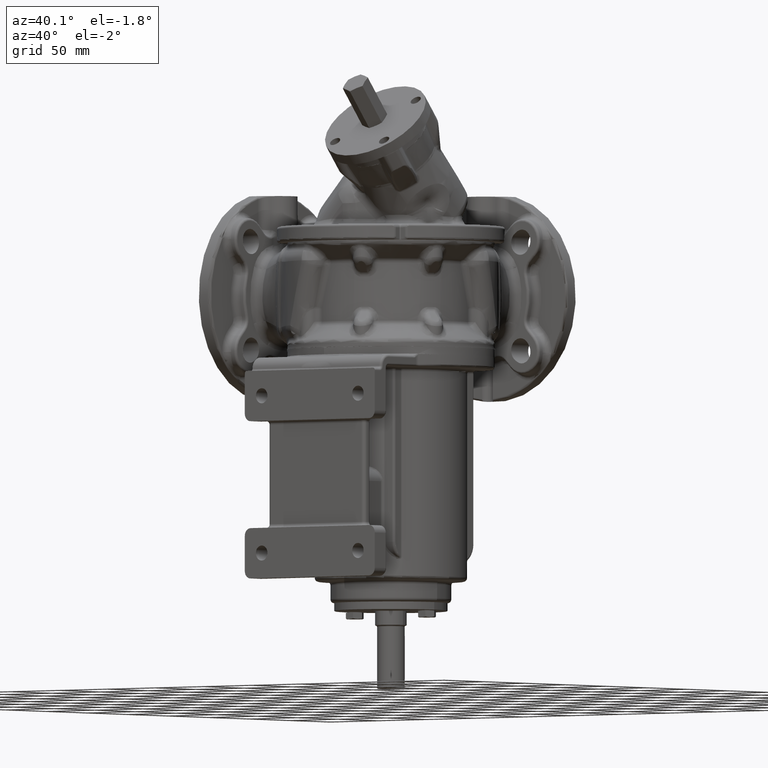
[diagram: clean part render]
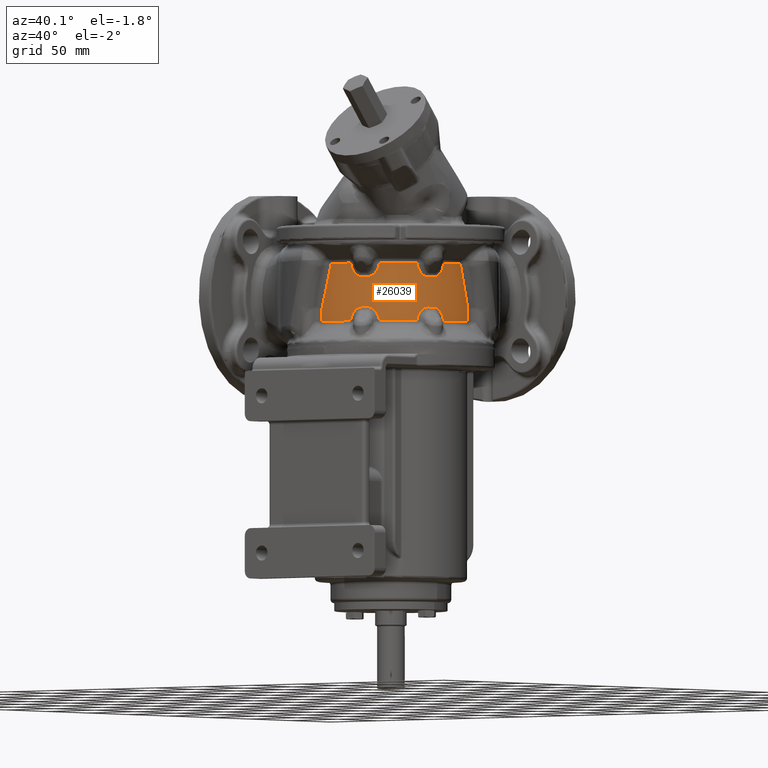
[diagram: same view with one face highlighted and labeled with its STEP entity id]
A machine part, auxiliary view. The second image highlights one B-rep face of the part: STEP entity #26039.
In plain terms, the highlighted cylindrical surface (partial cylindrical patch) has radius 69 mm, axis along (0, 0, -1).
Its self-contained STEP definition (entity closure, byte-faithful):
#92=CARTESIAN_POINT('',(5.818704602229E1,-3.708460159149E1,7.292893218564E1));
#93=CARTESIAN_POINT('',(5.819064961726E1,-3.707894738577E1,7.288133602007E1));
#94=CARTESIAN_POINT('',(5.819814311767E1,-3.706718625498E1,7.278626679811E1));
#95=CARTESIAN_POINT('',(5.821023042504E1,-3.704820172804E1,7.264410631498E1));
#96=CARTESIAN_POINT('',(5.821886642229E1,-3.703462796630E1,7.254947833878E1));
#97=CARTESIAN_POINT('',(5.822332731378E1,-3.702761343254E1,7.250221323931E1));
#99=CARTESIAN_POINT('',(5.822332731378E1,-3.702761343254E1,7.250221323931E1));
#100=CARTESIAN_POINT('',(5.832615971832E1,-3.686592302498E1,7.141300375906E1));
#101=CARTESIAN_POINT('',(5.861438308143E1,-3.640990068898E1,6.941658816249E1));
#102=CARTESIAN_POINT('',(5.921776563204E1,-3.542330587225E1,6.693770738E1));
#103=CARTESIAN_POINT('',(5.992472746570E1,-3.421646718043E1,6.497989969140E1));
#104=CARTESIAN_POINT('',(6.067687584642E1,-3.286559097045E1,6.353227906343E1));
#105=CARTESIAN_POINT('',(6.141609930399E1,-3.146277619277E1,6.257435465403E1));
#106=CARTESIAN_POINT('',(6.212045043805E1,-3.004759726719E1,6.203828216895E1));
#107=CARTESIAN_POINT('',(6.255312078170E1,-2.912660573456E1,6.192893538800E1));
#108=CARTESIAN_POINT('',(6.276190438198E1,-2.866955455932E1,6.192893218229E1));
#110=CARTESIAN_POINT('',(0.E0,0.E0,6.192893218813E1));
#111=DIRECTION('',(0.E0,0.E0,1.E0));
#112=DIRECTION('',(9.095928171198E-1,-4.155007906659E-1,0.E0));
#113=AXIS2_PLACEMENT_3D('',#110,#111,#112);
#115=CARTESIAN_POINT('',(6.465180463104E1,-2.410693174638E1,6.192893217961E1));
#116=CARTESIAN_POINT('',(6.482747097704E1,-2.363581124078E1,6.192893725479E1));
#117=CARTESIAN_POINT('',(6.517288424382E1,-2.267826511914E1,6.203840011542E1));
#118=CARTESIAN_POINT('',(6.567543793199E1,-2.117970588049E1,6.257463154431E1));
#119=CARTESIAN_POINT('',(6.614432758332E1,-1.966610964604E1,6.353204402866E1));
#120=CARTESIAN_POINT('',(6.656689904128E1,-1.818198616544E1,6.497636437794E1));
#121=CARTESIAN_POINT('',(6.692004166736E1,-1.683039990072E1,6.692897290421E1));
#122=CARTESIAN_POINT('',(6.719151723050E1,-1.570443825226E1,6.940609540024E1));
#123=CARTESIAN_POINT('',(6.731078392937E1,-1.517548626976E1,7.140823197909E1));
#124=CARTESIAN_POINT('',(6.735257199289E1,-1.498769648555E1,7.250184359308E1));
#126=CARTESIAN_POINT('',(6.735257199289E1,-1.498769648555E1,7.250184359308E1));
#127=CARTESIAN_POINT('',(6.735437722365E1,-1.497958403546E1,7.254908813073E1));
#128=CARTESIAN_POINT('',(6.735786951240E1,-1.496387637707E1,7.264371707283E1));
#129=CARTESIAN_POINT('',(6.736275497255E1,-1.494186735238E1,7.278609757790E1));
#130=CARTESIAN_POINT('',(6.736577607482E1,-1.492823696555E1,7.288127574873E1));
#131=CARTESIAN_POINT('',(6.736722788299E1,-1.492168245744E1,7.292893218564E1));
#133=CARTESIAN_POINT('',(0.E0,0.E0,7.292893218813E1));
#134=DIRECTION('',(0.E0,0.E0,1.E0));
#135=DIRECTION('',(9.763366359870E-1,-2.162562674922E-1,0.E0));
#136=AXIS2_PLACEMENT_3D('',#133,#134,#135);
#138=CARTESIAN_POINT('',(6.887590909286E1,4.136320324837E0,7.292893245047E1));
#139=CARTESIAN_POINT('',(6.887351960966E1,4.176124695312E0,7.261121084648E1));
#140=CARTESIAN_POINT('',(6.886779602225E1,4.270297979282E0,7.197882451311E1));
#141=CARTESIAN_POINT('',(6.885609982085E1,4.455524873881E0,7.103759027842E1));
#142=CARTESIAN_POINT('',(6.884604418802E1,4.607517300131E0,7.041862003047E1));
#143=CARTESIAN_POINT('',(6.884037823127E1,4.690663596699E0,7.011095271538E1));
#145=CARTESIAN_POINT('',(6.884037823127E1,4.690663596699E0,7.011095271538E1));
#146=CARTESIAN_POINT('',(6.883746444705E1,4.733431539417E0,6.995268681467E1));
#147=CARTESIAN_POINT('',(6.883146124421E1,4.820355214864E0,6.963632412250E1));
#148=CARTESIAN_POINT('',(6.882188508687E1,4.955238554706E0,6.916098870063E1));
#149=CARTESIAN_POINT('',(6.881515462270E1,5.047446108383E0,6.884615765231E1));
#150=CARTESIAN_POINT('',(6.881169495639E1,5.094176796009E0,6.868904036449E1));
#152=CARTESIAN_POINT('',(6.881169495639E1,5.094176796009E0,6.868904036449E1));
#153=CARTESIAN_POINT('',(6.872987542411E1,6.199387786273E0,6.497313648031E1));
#154=CARTESIAN_POINT('',(6.851389989549E1,8.393113569639E0,5.769423385898E1));
#155=CARTESIAN_POINT('',(6.803927456116E1,1.162696302797E1,4.724499447541E1));
#156=CARTESIAN_POINT('',(6.762494594357E1,1.374864858690E1,4.057339520675E1));
#157=CARTESIAN_POINT('',(6.739407648226E1,1.479994818723E1,3.731300089390E1));
#159=DIRECTION('',(-2.940730959600E-10,-3.574380055472E-8,-1.E0));
#160=VECTOR('',#159,1.024193308204E1);
#161=CARTESIAN_POINT('',(6.739407648226E1,1.479994818723E1,3.731300089390E1));
#162=LINE('',#161,#160);
#163=CARTESIAN_POINT('',(0.E0,0.E0,2.707106781187E1));
#164=DIRECTION('',(0.E0,0.E0,1.E0));
#165=DIRECTION('',(9.763366389102E-1,-2.162562542948E-1,0.E0));
#166=AXIS2_PLACEMENT_3D('',#163,#164,#165);
#168=CARTESIAN_POINT('',(6.736722808470E1,-1.492168154681E1,2.707106781422E1));
#169=CARTESIAN_POINT('',(6.736577808054E1,-1.492822781673E1,2.711866410082E1));
#170=CARTESIAN_POINT('',(6.736276040436E1,-1.494184292143E1,2.721373352368E1));
#171=CARTESIAN_POINT('',(6.735788332963E1,-1.496381404610E1,2.735589404170E1));
#172=CARTESIAN_POINT('',(6.735439179688E1,-1.497951874067E1,2.745052214261E1));
#173=CARTESIAN_POINT('',(6.735258609531E1,-1.498763311103E1,2.749778730536E1));
#175=CARTESIAN_POINT('',(6.735258609531E1,-1.498763311103E1,2.749778730536E1));
#176=CARTESIAN_POINT('',(6.731096727123E1,-1.517467867903E1,2.858699479939E1));
#177=CARTESIAN_POINT('',(6.719231572991E1,-1.570093874108E1,3.058340716805E1));
#178=CARTESIAN_POINT('',(6.692134443185E1,-1.682521983707E1,3.306228512845E1));
#179=CARTESIAN_POINT('',(6.656787888620E1,-1.817847863772E1,3.502009216922E1));
#180=CARTESIAN_POINT('',(6.614451544648E1,-1.966553854399E1,3.646771318275E1));
#181=CARTESIAN_POINT('',(6.567528583404E1,-2.118018820600E1,3.742564079003E1));
#182=CARTESIAN_POINT('',(6.517265361049E1,-2.267892613417E1,3.796171702269E1));
#183=CARTESIAN_POINT('',(6.482735714054E1,-2.363611326268E1,3.807106459115E1));
#184=CARTESIAN_POINT('',(6.465180462970E1,-2.410693174596E1,3.807106781359E1));
#186=CARTESIAN_POINT('',(0.E0,0.E0,3.807106781187E1));
#187=DIRECTION('',(0.E0,0.E0,-1.E0));
#188=DIRECTION('',(9.369826757733E-1,-3.493758224331E-1,0.E0));
#189=AXIS2_PLACEMENT_3D('',#186,#187,#188);
#191=CARTESIAN_POINT('',(6.276190438020E1,-2.866955455882E1,3.807106781287E1));
#192=CARTESIAN_POINT('',(6.255299687486E1,-2.912687970588E1,3.807106276094E1));
#193=CARTESIAN_POINT('',(6.212017148990E1,-3.004817460812E1,3.796161019001E1));
#194=CARTESIAN_POINT('',(6.141590624734E1,-3.146314539211E1,3.742541239313E1));
#195=CARTESIAN_POINT('',(6.067719590729E1,-3.286496393579E1,3.646804002265E1));
#196=CARTESIAN_POINT('',(5.992654802695E1,-3.421323647964E1,3.502372161470E1));
#197=CARTESIAN_POINT('',(5.922052863832E1,-3.541868641148E1,3.307110941429E1));
#198=CARTESIAN_POINT('',(5.861630103141E1,-3.640684880933E1,3.059395818929E1));
#199=CARTESIAN_POINT('',(5.832660263211E1,-3.686521997359E1,2.859178638644E1));
#200=CARTESIAN_POINT('',(5.822336185590E1,-3.702755911746E1,2.749815269999E1));
#202=CARTESIAN_POINT('',(5.822336185590E1,-3.702755911746E1,2.749815269999E1));
#203=CARTESIAN_POINT('',(5.821890202522E1,-3.703457190299E1,2.745090860620E1));
#204=CARTESIAN_POINT('',(5.821026454311E1,-3.704814817634E1,2.735628053053E1));
#205=CARTESIAN_POINT('',(5.819815647268E1,-3.706716526315E1,2.721390126268E1));
#206=CARTESIAN_POINT('',(5.819065464481E1,-3.707893953541E1,2.711872387192E1));
#207=CARTESIAN_POINT('',(5.818704652340E1,-3.708460080524E1,2.707106781422E1));
#209=CARTESIAN_POINT('',(0.E0,0.E0,2.707106781187E1));
#210=DIRECTION('',(0.E0,0.E0,1.E0));
#211=DIRECTION('',(5.374579942084E-1,-8.432905219801E-1,0.E0));
#212=AXIS2_PLACEMENT_3D('',#209,#210,#211);
#214=CARTESIAN_POINT('',(3.708460159998E1,-5.818704601688E1,2.707106781422E1));
#215=CARTESIAN_POINT('',(3.707894738036E1,-5.819064962095E1,2.711866410069E1));
#216=CARTESIAN_POINT('',(3.706718622825E1,-5.819814313450E1,2.721373352325E1));
#217=CARTESIAN_POINT('',(3.704820168451E1,-5.821023045306E1,2.735589404045E1));
#218=CARTESIAN_POINT('',(3.703462790207E1,-5.821886646256E1,2.745052214099E1));
#219=CARTESIAN_POINT('',(3.702761335197E1,-5.822332736502E1,2.749778730355E1));
#221=CARTESIAN_POINT('',(3.702761335197E1,-5.822332736502E1,2.749778730355E1));
#222=CARTESIAN_POINT('',(3.686592293844E1,-5.832615977428E1,2.858699663515E1));
#223=CARTESIAN_POINT('',(3.640990062669E1,-5.861438311953E1,3.058341200891E1));
#224=CARTESIAN_POINT('',(3.542330578518E1,-5.921776568440E1,3.306229280808E1));
#225=CARTESIAN_POINT('',(3.421646710240E1,-5.992472751002E1,3.502010040009E1));
#226=CARTESIAN_POINT('',(3.286559091137E1,-6.067687587822E1,3.646772099280E1));
#227=CARTESIAN_POINT('',(3.146277615034E1,-6.141609932569E1,3.742564537306E1));
#228=CARTESIAN_POINT('',(3.004759723859E1,-6.212045045134E1,3.796171784574E1));
#229=CARTESIAN_POINT('',(2.912660572456E1,-6.255312078703E1,3.807106461450E1));
#230=CARTESIAN_POINT('',(2.866955455976E1,-6.276190438264E1,3.807106781994E1));
#232=CARTESIAN_POINT('',(0.E0,0.E0,3.807106781187E1));
#233=DIRECTION('',(0.E0,0.E0,-1.E0));
#234=DIRECTION('',(4.155007906671E-1,-9.095928171193E-1,0.E0));
#235=AXIS2_PLACEMENT_3D('',#232,#233,#234);
#237=CARTESIAN_POINT('',(2.410693174601E1,-6.465180462932E1,3.807106781299E1));
#238=CARTESIAN_POINT('',(2.363790174167E1,-6.482669026948E1,3.807106386691E1));
#239=CARTESIAN_POINT('',(2.268411672022E1,-6.517081069887E1,3.796255989674E1));
#240=CARTESIAN_POINT('',(2.118951684421E1,-6.567223792345E1,3.742973495778E1));
#241=CARTESIAN_POINT('',(1.967926578635E1,-6.614041143918E1,3.647816569427E1));
#242=CARTESIAN_POINT('',(1.819237005914E1,-6.656409766220E1,3.503642236770E1));
#243=CARTESIAN_POINT('',(1.683609479744E1,-6.691864159894E1,3.308193053022E1));
#244=CARTESIAN_POINT('',(1.570574583583E1,-6.719122669387E1,3.059880110489E1));
#245=CARTESIAN_POINT('',(1.517578335387E1,-6.731071894062E1,2.859344578114E1));
#246=CARTESIAN_POINT('',(1.498769584918E1,-6.735257213450E1,2.749815270077E1));
#248=CARTESIAN_POINT('',(1.498769584918E1,-6.735257213450E1,2.749815270077E1));
#249=CARTESIAN_POINT('',(1.497958348446E1,-6.735437734619E1,2.745090860699E1));
#250=CARTESIAN_POINT('',(1.496387598714E1,-6.735786959900E1,2.735628053018E1));
#251=CARTESIAN_POINT('',(1.494186717748E1,-6.736275501132E1,2.721390126279E1));
#252=CARTESIAN_POINT('',(1.492823691634E1,-6.736577608572E1,2.711872387193E1));
#253=CARTESIAN_POINT('',(1.492168246693E1,-6.736722788089E1,2.707106781422E1));
#255=CARTESIAN_POINT('',(0.E0,0.E0,2.707106781187E1));
#256=DIRECTION('',(0.E0,0.E0,-1.E0));
#257=DIRECTION('',(2.162562676299E-1,-9.763366359565E-1,0.E0));
#258=AXIS2_PLACEMENT_3D('',#255,#256,#257);
#260=DIRECTION('',(1.296172537384E-7,-3.065640750825E-7,9.999999999999E-1));
#261=VECTOR('',#260,1.024192426725E1);
#262=CARTESIAN_POINT('',(-1.479994782115E1,-6.739407647925E1,2.707106781187E1));
#263=LINE('',#262,#261);
#264=CARTESIAN_POINT('',(-5.094176796010E0,-6.881169495639E1,6.868904036449E1));
#265=CARTESIAN_POINT('',(-6.198671226248E0,-6.872992842179E1,6.497554553296E1));
#266=CARTESIAN_POINT('',(-8.391402824501E0,-6.851410004408E1,5.769983238037E1));
#267=CARTESIAN_POINT('',(-1.162544800929E1,-6.803954441444E1,4.724977674005E1));
#268=CARTESIAN_POINT('',(-1.374798341048E1,-6.762509511038E1,4.057544248630E1));
#269=CARTESIAN_POINT('',(-1.479994649362E1,-6.739407961906E1,3.731299207911E1));
#271=CARTESIAN_POINT('',(-4.690663596699E0,-6.884037823127E1,7.011095271538E1));
#272=CARTESIAN_POINT('',(-4.733431540018E0,-6.883746444701E1,6.995268681247E1));
#273=CARTESIAN_POINT('',(-4.820355216214E0,-6.883146124412E1,6.963632411746E1));
#274=CARTESIAN_POINT('',(-4.955238553719E0,-6.882188508694E1,6.916098870422E1));
#275=CARTESIAN_POINT('',(-5.047446107914E0,-6.881515462273E1,6.884615765389E1));
#276=CARTESIAN_POINT('',(-5.094176796010E0,-6.881169495639E1,6.868904036449E1));
#278=CARTESIAN_POINT('',(-4.136320328782E0,-6.887590909262E1,7.292893233470E1));
#279=CARTESIAN_POINT('',(-4.176124718313E0,-6.887351960918E1,7.261121059388E1));
#280=CARTESIAN_POINT('',(-4.270298033391E0,-6.886779601872E1,7.197882424209E1));
#281=CARTESIAN_POINT('',(-4.455525083141E0,-6.885609980703E1,7.103758930988E1));
#282=CARTESIAN_POINT('',(-4.607517410658E0,-6.884604418148E1,7.041861962433E1));
#283=CARTESIAN_POINT('',(-4.690663596699E0,-6.884037823127E1,7.011095271538E1));
#285=CARTESIAN_POINT('',(0.E0,0.E0,7.292893218813E1));
#286=DIRECTION('',(0.E0,0.E0,-1.E0));
#287=DIRECTION('',(2.162562544369E-1,-9.763366388787E-1,0.E0));
#288=AXIS2_PLACEMENT_3D('',#285,#286,#287);
#290=CARTESIAN_POINT('',(1.492168155663E1,-6.736722808252E1,7.292893218564E1));
#291=CARTESIAN_POINT('',(1.492822781028E1,-6.736577808175E1,7.288133602007E1));
#292=CARTESIAN_POINT('',(1.494184289057E1,-6.736276041137E1,7.278626679808E1));
#293=CARTESIAN_POINT('',(1.496381399530E1,-6.735788334064E1,7.264410631509E1));
#294=CARTESIAN_POINT('',(1.497951866653E1,-6.735439181388E1,7.254947833859E1));
#295=CARTESIAN_POINT('',(1.498763301755E1,-6.735258611611E1,7.250221323911E1));
#297=CARTESIAN_POINT('',(1.498763301755E1,-6.735258611611E1,7.250221323911E1));
#298=CARTESIAN_POINT('',(1.517561245523E1,-6.731075646200E1,7.140740157010E1));
#299=CARTESIAN_POINT('',(1.570523679391E1,-6.719134126748E1,6.940299277592E1));
#300=CARTESIAN_POINT('',(1.683423616025E1,-6.691909856880E1,6.692168210740E1));
#301=CARTESIAN_POINT('',(1.818885752698E1,-6.656504432300E1,6.496789628984E1));
#302=CARTESIAN_POINT('',(1.967450612115E1,-6.614182379722E1,6.352560023944E1));
#303=CARTESIAN_POINT('',(2.118541147031E1,-6.567357464761E1,6.257210060428E1));
#304=CARTESIAN_POINT('',(2.268183864987E1,-6.517161963295E1,6.203776121493E1));
#305=CARTESIAN_POINT('',(2.363707627755E1,-6.482700024114E1,6.192894450742E1));
#306=CARTESIAN_POINT('',(2.410693174831E1,-6.465180463039E1,6.192893218231E1));
#308=CARTESIAN_POINT('',(0.E0,0.E0,6.192893218813E1));
#309=DIRECTION('',(0.E0,0.E0,1.E0));
#310=DIRECTION('',(3.493758224357E-1,-9.369826757723E-1,0.E0));
#311=AXIS2_PLACEMENT_3D('',#308,#309,#310);
#313=CARTESIAN_POINT('',(2.866955455972E1,-6.276190438204E1,6.192893217846E1));
#314=CARTESIAN_POINT('',(2.912687971118E1,-6.255299687446E1,6.192893722918E1));
#315=CARTESIAN_POINT('',(3.004817459785E1,-6.212017149368E1,6.203838978226E1));
#316=CARTESIAN_POINT('',(3.146314533400E1,-6.141590627636E1,6.257458755785E1));
#317=CARTESIAN_POINT('',(3.286496367974E1,-6.067719604291E1,6.353195974797E1));
#318=CARTESIAN_POINT('',(3.421323588974E1,-5.992654836098E1,6.497627765658E1));
#319=CARTESIAN_POINT('',(3.541868564708E1,-5.922052909475E1,6.692888913296E1));
#320=CARTESIAN_POINT('',(3.640684803581E1,-5.861630151231E1,6.940603936487E1));
#321=CARTESIAN_POINT('',(3.686521930601E1,-5.832660305444E1,7.140821035558E1));
#322=CARTESIAN_POINT('',(3.702755856723E1,-5.822336220582E1,7.250184359308E1));
#324=CARTESIAN_POINT('',(3.702755856723E1,-5.822336220582E1,7.250184359308E1));
#325=CARTESIAN_POINT('',(3.703457142661E1,-5.821890232827E1,7.254908813073E1));
#326=CARTESIAN_POINT('',(3.704814783944E1,-5.821026475756E1,7.264371707288E1));
#327=CARTESIAN_POINT('',(3.706716511203E1,-5.819815656896E1,7.278609757790E1));
#328=CARTESIAN_POINT('',(3.707893949291E1,-5.819065467190E1,7.288127574873E1));
#329=CARTESIAN_POINT('',(3.708460081344E1,-5.818704651817E1,7.292893218564E1));
#331=CARTESIAN_POINT('',(0.E0,0.E0,7.292893218813E1));
#332=DIRECTION('',(0.E0,0.E0,-1.E0));
#333=DIRECTION('',(8.432905220583E-1,-5.374579940856E-1,0.E0));
#334=AXIS2_PLACEMENT_3D('',#331,#332,#333);
#24433=VERTEX_POINT('',#92);
#24434=VERTEX_POINT('',#97);
#24436=VERTEX_POINT('',#108);
#24438=CARTESIAN_POINT('',(6.465180462833E1,-2.410693174795E1,
6.192893218813E1));
#24439=VERTEX_POINT('',#24438);
#24442=VERTEX_POINT('',#124);
#24444=VERTEX_POINT('',#131);
#24459=CARTESIAN_POINT('',(5.818704652314E1,-3.708460080564E1,
2.707106781187E1));
#24461=VERTEX_POINT('',#24459);
#24463=VERTEX_POINT('',#168);
#24464=VERTEX_POINT('',#173);
#24466=VERTEX_POINT('',#184);
#24468=CARTESIAN_POINT('',(6.276190438121E1,-2.866955455607E1,
3.807106781187E1));
#24469=VERTEX_POINT('',#24468);
#24472=VERTEX_POINT('',#200);
#24479=VERTEX_POINT('',#214);
#24480=VERTEX_POINT('',#219);
#24482=VERTEX_POINT('',#230);
#24484=CARTESIAN_POINT('',(2.410693174793E1,-6.465180462834E1,
3.807106781187E1));
#24485=VERTEX_POINT('',#24484);
#24488=VERTEX_POINT('',#246);
#24490=VERTEX_POINT('',#253);
#24507=VERTEX_POINT('',#290);
#24508=VERTEX_POINT('',#295);
#24510=VERTEX_POINT('',#306);
#24512=CARTESIAN_POINT('',(2.866955455610E1,-6.276190438120E1,
6.192893218813E1));
#24513=VERTEX_POINT('',#24512);
#24516=VERTEX_POINT('',#322);
#24518=VERTEX_POINT('',#329);
#24529=CARTESIAN_POINT('',(-4.136320522036E0,-6.887590908684E1,
7.292893218813E1));
#24530=VERTEX_POINT('',#24529);
#24533=CARTESIAN_POINT('',(6.739407647925E1,1.479994782115E1,2.707106781187E1));
#24534=VERTEX_POINT('',#24533);
#24565=VERTEX_POINT('',#152);
#24566=VERTEX_POINT('',#157);
#24569=VERTEX_POINT('',#145);
#24571=VERTEX_POINT('',#138);
#24577=VERTEX_POINT('',#264);
#24578=VERTEX_POINT('',#269);
#24580=VERTEX_POINT('',#271);
#24640=CARTESIAN_POINT('',(-1.479994782115E1,-6.739407647925E1,
2.707106781187E1));
#24641=VERTEX_POINT('',#24640);
#25966=CARTESIAN_POINT('',(0.E0,0.E0,1.006E2));
#25967=DIRECTION('',(0.E0,0.E0,-1.E0));
#25968=DIRECTION('',(1.E0,0.E0,0.E0));
#25969=AXIS2_PLACEMENT_3D('',#25966,#25967,#25968);
#25970=CYLINDRICAL_SURFACE('',#25969,6.9E1);
#25972=ORIENTED_EDGE('',*,*,#25971,.T.);
#25974=ORIENTED_EDGE('',*,*,#25973,.T.);
#25976=ORIENTED_EDGE('',*,*,#25975,.T.);
#25978=ORIENTED_EDGE('',*,*,#25977,.T.);
#25980=ORIENTED_EDGE('',*,*,#25979,.T.);
#25982=ORIENTED_EDGE('',*,*,#25981,.T.);
#25984=ORIENTED_EDGE('',*,*,#25983,.T.);
#25986=ORIENTED_EDGE('',*,*,#25985,.T.);
#25988=ORIENTED_EDGE('',*,*,#25987,.T.);
#25990=ORIENTED_EDGE('',*,*,#25989,.T.);
#25992=ORIENTED_EDGE('',*,*,#25991,.F.);
#25994=ORIENTED_EDGE('',*,*,#25993,.T.);
#25996=ORIENTED_EDGE('',*,*,#25995,.T.);
#25998=ORIENTED_EDGE('',*,*,#25997,.T.);
#26000=ORIENTED_EDGE('',*,*,#25999,.T.);
#26002=ORIENTED_EDGE('',*,*,#26001,.T.);
#26004=ORIENTED_EDGE('',*,*,#26003,.F.);
#26006=ORIENTED_EDGE('',*,*,#26005,.T.);
#26008=ORIENTED_EDGE('',*,*,#26007,.T.);
#26010=ORIENTED_EDGE('',*,*,#26009,.T.);
#26012=ORIENTED_EDGE('',*,*,#26011,.T.);
#26014=ORIENTED_EDGE('',*,*,#26013,.T.);
#26016=ORIENTED_EDGE('',*,*,#26015,.T.);
#26017=ORIENTED_EDGE('',*,*,#25957,.T.);
#26018=ORIENTED_EDGE('',*,*,#25808,.F.);
#26020=ORIENTED_EDGE('',*,*,#26019,.F.);
#26022=ORIENTED_EDGE('',*,*,#26021,.F.);
#26024=ORIENTED_EDGE('',*,*,#26023,.F.);
#26026=ORIENTED_EDGE('',*,*,#26025,.T.);
#26028=ORIENTED_EDGE('',*,*,#26027,.T.);
#26030=ORIENTED_EDGE('',*,*,#26029,.T.);
#26032=ORIENTED_EDGE('',*,*,#26031,.T.);
#26034=ORIENTED_EDGE('',*,*,#26033,.T.);
#26036=ORIENTED_EDGE('',*,*,#26035,.F.);
#26037=EDGE_LOOP('',(#25972,#25974,#25976,#25978,#25980,#25982,#25984,#25986,
#25988,#25990,#25992,#25994,#25996,#25998,#26000,#26002,#26004,#26006,#26008,
#26010,#26012,#26014,#26016,#26017,#26018,#26020,#26022,#26024,#26026,#26028,
#26030,#26032,#26034,#26036));
#26038=FACE_OUTER_BOUND('',#26037,.F.);
#26039=ADVANCED_FACE('',(#26038),#25970,.T.);
#98=B_SPLINE_CURVE_WITH_KNOTS('',3,(#92,#93,#94,#95,#96,#97),.UNSPECIFIED.,.F.,
.F.,(4,1,1,4),(0.E0,3.333333333333E-1,6.666666666667E-1,1.E0),.UNSPECIFIED.);
#109=B_SPLINE_CURVE_WITH_KNOTS('',3,(#99,#100,#101,#102,#103,#104,#105,#106,
#107,#108),.UNSPECIFIED.,.F.,.F.,(4,1,1,1,1,1,1,4),(0.E0,1.428571428571E-1,
2.857142857143E-1,4.285714285714E-1,5.714285714286E-1,7.142857142857E-1,
8.571428571429E-1,1.E0),.UNSPECIFIED.);
#114=CIRCLE('',#113,6.9E1);
#125=B_SPLINE_CURVE_WITH_KNOTS('',3,(#115,#116,#117,#118,#119,#120,#121,#122,
#123,#124),.UNSPECIFIED.,.F.,.F.,(4,1,1,1,1,1,1,4),(0.E0,1.428571428571E-1,
2.857142857143E-1,4.285714285714E-1,5.714285714286E-1,7.142857142857E-1,
8.571428571429E-1,1.E0),.UNSPECIFIED.);
#132=B_SPLINE_CURVE_WITH_KNOTS('',3,(#126,#127,#128,#129,#130,#131),
.UNSPECIFIED.,.F.,.F.,(4,1,1,4),(0.E0,3.333333333333E-1,6.666666666667E-1,1.E0),
.UNSPECIFIED.);
#137=CIRCLE('',#136,6.9E1);
#144=B_SPLINE_CURVE_WITH_KNOTS('',3,(#138,#139,#140,#141,#142,#143),
.UNSPECIFIED.,.F.,.F.,(4,1,1,4),(0.E0,3.333333333333E-1,6.666666666667E-1,1.E0),
.UNSPECIFIED.);
#151=B_SPLINE_CURVE_WITH_KNOTS('',3,(#145,#146,#147,#148,#149,#150),
.UNSPECIFIED.,.F.,.F.,(4,1,1,4),(0.E0,3.333333333333E-1,6.666666666667E-1,1.E0),
.UNSPECIFIED.);
#158=B_SPLINE_CURVE_WITH_KNOTS('',3,(#152,#153,#154,#155,#156,#157),
.UNSPECIFIED.,.F.,.F.,(4,1,1,4),(0.E0,3.333333333333E-1,6.666666666667E-1,1.E0),
.UNSPECIFIED.);
#167=CIRCLE('',#166,6.9E1);
#174=B_SPLINE_CURVE_WITH_KNOTS('',3,(#168,#169,#170,#171,#172,#173),
.UNSPECIFIED.,.F.,.F.,(4,1,1,4),(0.E0,3.333333333333E-1,6.666666666667E-1,1.E0),
.UNSPECIFIED.);
#185=B_SPLINE_CURVE_WITH_KNOTS('',3,(#175,#176,#177,#178,#179,#180,#181,#182,
#183,#184),.UNSPECIFIED.,.F.,.F.,(4,1,1,1,1,1,1,4),(0.E0,1.428571428571E-1,
2.857142857143E-1,4.285714285714E-1,5.714285714286E-1,7.142857142857E-1,
8.571428571429E-1,1.E0),.UNSPECIFIED.);
#190=CIRCLE('',#189,6.9E1);
#201=B_SPLINE_CURVE_WITH_KNOTS('',3,(#191,#192,#193,#194,#195,#196,#197,#198,
#199,#200),.UNSPECIFIED.,.F.,.F.,(4,1,1,1,1,1,1,4),(0.E0,1.428571428571E-1,
2.857142857143E-1,4.285714285714E-1,5.714285714286E-1,7.142857142857E-1,
8.571428571429E-1,1.E0),.UNSPECIFIED.);
#208=B_SPLINE_CURVE_WITH_KNOTS('',3,(#202,#203,#204,#205,#206,#207),
.UNSPECIFIED.,.F.,.F.,(4,1,1,4),(0.E0,3.333333333333E-1,6.666666666667E-1,1.E0),
.UNSPECIFIED.);
#213=CIRCLE('',#212,6.9E1);
#220=B_SPLINE_CURVE_WITH_KNOTS('',3,(#214,#215,#216,#217,#218,#219),
.UNSPECIFIED.,.F.,.F.,(4,1,1,4),(0.E0,3.333333333333E-1,6.666666666667E-1,1.E0),
.UNSPECIFIED.);
#231=B_SPLINE_CURVE_WITH_KNOTS('',3,(#221,#222,#223,#224,#225,#226,#227,#228,
#229,#230),.UNSPECIFIED.,.F.,.F.,(4,1,1,1,1,1,1,4),(0.E0,1.428571428571E-1,
2.857142857143E-1,4.285714285714E-1,5.714285714286E-1,7.142857142857E-1,
8.571428571429E-1,1.E0),.UNSPECIFIED.);
#236=CIRCLE('',#235,6.9E1);
#247=B_SPLINE_CURVE_WITH_KNOTS('',3,(#237,#238,#239,#240,#241,#242,#243,#244,
#245,#246),.UNSPECIFIED.,.F.,.F.,(4,1,1,1,1,1,1,4),(0.E0,1.428571428571E-1,
2.857142857143E-1,4.285714285714E-1,5.714285714286E-1,7.142857142857E-1,
8.571428571429E-1,1.E0),.UNSPECIFIED.);
#254=B_SPLINE_CURVE_WITH_KNOTS('',3,(#248,#249,#250,#251,#252,#253),
.UNSPECIFIED.,.F.,.F.,(4,1,1,4),(0.E0,3.333333333333E-1,6.666666666667E-1,1.E0),
.UNSPECIFIED.);
#259=CIRCLE('',#258,6.9E1);
#270=B_SPLINE_CURVE_WITH_KNOTS('',3,(#264,#265,#266,#267,#268,#269),
.UNSPECIFIED.,.F.,.F.,(4,1,1,4),(0.E0,3.333333333333E-1,6.666666666667E-1,1.E0),
.UNSPECIFIED.);
#277=B_SPLINE_CURVE_WITH_KNOTS('',3,(#271,#272,#273,#274,#275,#276),
.UNSPECIFIED.,.F.,.F.,(4,1,1,4),(0.E0,3.333333333333E-1,6.666666666667E-1,1.E0),
.UNSPECIFIED.);
#284=B_SPLINE_CURVE_WITH_KNOTS('',3,(#278,#279,#280,#281,#282,#283),
.UNSPECIFIED.,.F.,.F.,(4,1,1,4),(0.E0,3.333333333333E-1,6.666666666667E-1,1.E0),
.UNSPECIFIED.);
#289=CIRCLE('',#288,6.9E1);
#296=B_SPLINE_CURVE_WITH_KNOTS('',3,(#290,#291,#292,#293,#294,#295),
.UNSPECIFIED.,.F.,.F.,(4,1,1,4),(0.E0,3.333333333333E-1,6.666666666667E-1,1.E0),
.UNSPECIFIED.);
#307=B_SPLINE_CURVE_WITH_KNOTS('',3,(#297,#298,#299,#300,#301,#302,#303,#304,
#305,#306),.UNSPECIFIED.,.F.,.F.,(4,1,1,1,1,1,1,4),(0.E0,1.428571428571E-1,
2.857142857143E-1,4.285714285714E-1,5.714285714286E-1,7.142857142857E-1,
8.571428571429E-1,1.E0),.UNSPECIFIED.);
#312=CIRCLE('',#311,6.9E1);
#323=B_SPLINE_CURVE_WITH_KNOTS('',3,(#313,#314,#315,#316,#317,#318,#319,#320,
#321,#322),.UNSPECIFIED.,.F.,.F.,(4,1,1,1,1,1,1,4),(0.E0,1.428571428571E-1,
2.857142857143E-1,4.285714285714E-1,5.714285714286E-1,7.142857142857E-1,
8.571428571429E-1,1.E0),.UNSPECIFIED.);
#330=B_SPLINE_CURVE_WITH_KNOTS('',3,(#324,#325,#326,#327,#328,#329),
.UNSPECIFIED.,.F.,.F.,(4,1,1,4),(0.E0,3.333333333333E-1,6.666666666667E-1,1.E0),
.UNSPECIFIED.);
#335=CIRCLE('',#334,6.9E1);
#25808=EDGE_CURVE('',#24577,#24578,#270,.T.);
#25957=EDGE_CURVE('',#24641,#24578,#263,.T.);
#25971=EDGE_CURVE('',#24433,#24434,#98,.T.);
#25973=EDGE_CURVE('',#24434,#24436,#109,.T.);
#25975=EDGE_CURVE('',#24436,#24439,#114,.T.);
#25977=EDGE_CURVE('',#24439,#24442,#125,.T.);
#25979=EDGE_CURVE('',#24442,#24444,#132,.T.);
#25981=EDGE_CURVE('',#24444,#24571,#137,.T.);
#25983=EDGE_CURVE('',#24571,#24569,#144,.T.);
#25985=EDGE_CURVE('',#24569,#24565,#151,.T.);
#25987=EDGE_CURVE('',#24565,#24566,#158,.T.);
#25989=EDGE_CURVE('',#24566,#24534,#162,.T.);
#25991=EDGE_CURVE('',#24463,#24534,#167,.T.);
#25993=EDGE_CURVE('',#24463,#24464,#174,.T.);
#25995=EDGE_CURVE('',#24464,#24466,#185,.T.);
#25997=EDGE_CURVE('',#24466,#24469,#190,.T.);
#25999=EDGE_CURVE('',#24469,#24472,#201,.T.);
#26001=EDGE_CURVE('',#24472,#24461,#208,.T.);
#26003=EDGE_CURVE('',#24479,#24461,#213,.T.);
#26005=EDGE_CURVE('',#24479,#24480,#220,.T.);
#26007=EDGE_CURVE('',#24480,#24482,#231,.T.);
#26009=EDGE_CURVE('',#24482,#24485,#236,.T.);
#26011=EDGE_CURVE('',#24485,#24488,#247,.T.);
#26013=EDGE_CURVE('',#24488,#24490,#254,.T.);
#26015=EDGE_CURVE('',#24490,#24641,#259,.T.);
#26019=EDGE_CURVE('',#24580,#24577,#277,.T.);
#26021=EDGE_CURVE('',#24530,#24580,#284,.T.);
#26023=EDGE_CURVE('',#24507,#24530,#289,.T.);
#26025=EDGE_CURVE('',#24507,#24508,#296,.T.);
#26027=EDGE_CURVE('',#24508,#24510,#307,.T.);
#26029=EDGE_CURVE('',#24510,#24513,#312,.T.);
#26031=EDGE_CURVE('',#24513,#24516,#323,.T.);
#26033=EDGE_CURVE('',#24516,#24518,#330,.T.);
#26035=EDGE_CURVE('',#24433,#24518,#335,.T.);